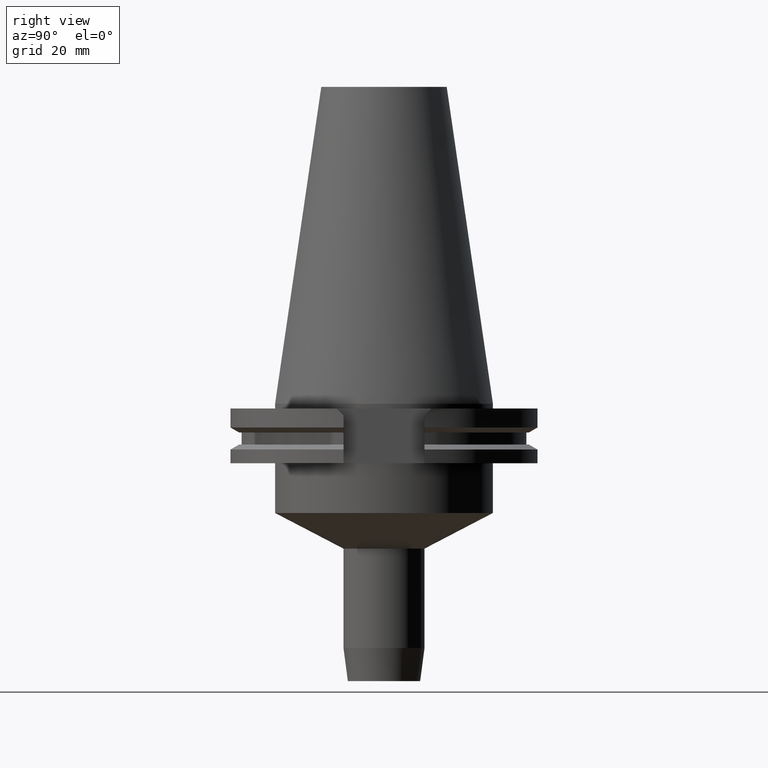
[diagram: clean part render]
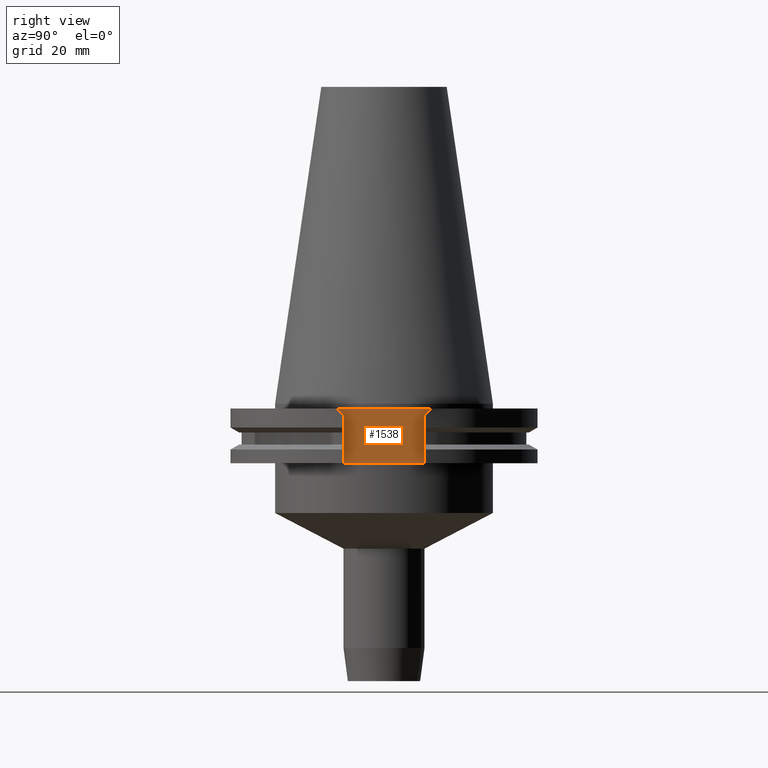
[diagram: same view with one face highlighted and labeled with its STEP entity id]
A machine part, right view. The second image highlights one B-rep face of the part: STEP entity #1538.
In plain terms, the highlighted planar face has unit normal (1, 0, 0).
Its self-contained STEP definition (entity closure, byte-faithful):
#94=DIRECTION('',(0.E0,-1.E0,0.E0));
#95=VECTOR('',#94,3.031E1);
#96=CARTESIAN_POINT('',(3.527E1,1.5155E1,-1.5E0));
#97=LINE('',#96,#95);
#170=DIRECTION('',(0.E0,-1.E0,0.E0));
#171=VECTOR('',#170,2.591E1);
#172=CARTESIAN_POINT('',(3.527E1,1.2955E1,-1.905E1));
#173=LINE('',#172,#171);
#177=DIRECTION('',(0.E0,0.E0,1.E0));
#178=VECTOR('',#177,1.535E1);
#179=CARTESIAN_POINT('',(3.527E1,-1.2955E1,-1.905E1));
#180=LINE('',#179,#178);
#184=DIRECTION('',(0.E0,-7.071067811865E-1,7.071067811865E-1));
#185=VECTOR('',#184,3.111269837221E0);
#186=CARTESIAN_POINT('',(3.527E1,-1.2955E1,-3.7E0));
#187=LINE('',#186,#185);
#191=DIRECTION('',(0.E0,-7.071067811865E-1,-7.071067811865E-1));
#192=VECTOR('',#191,3.111269837221E0);
#193=CARTESIAN_POINT('',(3.527E1,1.5155E1,-1.5E0));
#194=LINE('',#193,#192);
#198=DIRECTION('',(0.E0,0.E0,-1.E0));
#199=VECTOR('',#198,1.535E1);
#200=CARTESIAN_POINT('',(3.527E1,1.2955E1,-3.7E0));
#201=LINE('',#200,#199);
#1280=CARTESIAN_POINT('',(3.527E1,1.2955E1,-1.905E1));
#1281=CARTESIAN_POINT('',(3.527E1,-1.2955E1,-1.905E1));
#1282=VERTEX_POINT('',#1280);
#1283=VERTEX_POINT('',#1281);
#1300=CARTESIAN_POINT('',(3.527E1,-1.2955E1,-3.7E0));
#1301=VERTEX_POINT('',#1300);
#1302=CARTESIAN_POINT('',(3.527E1,-1.5155E1,-1.5E0));
#1303=VERTEX_POINT('',#1302);
#1304=CARTESIAN_POINT('',(3.527E1,1.5155E1,-1.5E0));
#1305=VERTEX_POINT('',#1304);
#1306=CARTESIAN_POINT('',(3.527E1,1.2955E1,-3.7E0));
#1307=VERTEX_POINT('',#1306);
#1520=CARTESIAN_POINT('',(3.527E1,0.E0,0.E0));
#1521=DIRECTION('',(1.E0,0.E0,0.E0));
#1522=DIRECTION('',(0.E0,0.E0,-1.E0));
#1523=AXIS2_PLACEMENT_3D('',#1520,#1521,#1522);
#1524=PLANE('',#1523);
#1526=ORIENTED_EDGE('',*,*,#1525,.T.);
#1528=ORIENTED_EDGE('',*,*,#1527,.T.);
#1530=ORIENTED_EDGE('',*,*,#1529,.T.);
#1531=ORIENTED_EDGE('',*,*,#1493,.F.);
#1533=ORIENTED_EDGE('',*,*,#1532,.T.);
#1535=ORIENTED_EDGE('',*,*,#1534,.T.);
#1536=EDGE_LOOP('',(#1526,#1528,#1530,#1531,#1533,#1535));
#1537=FACE_OUTER_BOUND('',#1536,.F.);
#1493=EDGE_CURVE('',#1305,#1303,#97,.T.);
#1525=EDGE_CURVE('',#1282,#1283,#173,.T.);
#1527=EDGE_CURVE('',#1283,#1301,#180,.T.);
#1529=EDGE_CURVE('',#1301,#1303,#187,.T.);
#1532=EDGE_CURVE('',#1305,#1307,#194,.T.);
#1534=EDGE_CURVE('',#1307,#1282,#201,.T.);
#1538=ADVANCED_FACE('',(#1537),#1524,.T.);